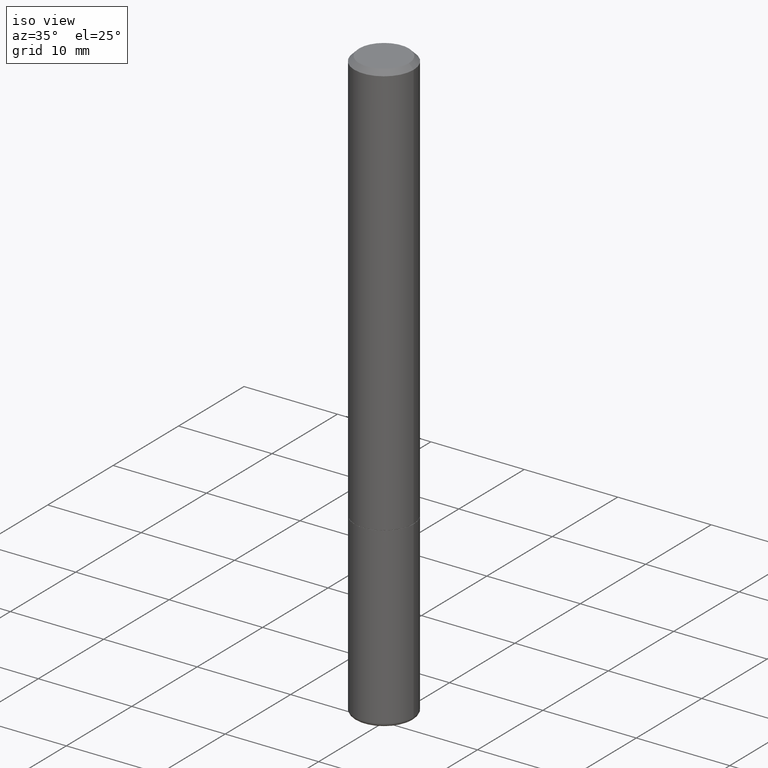
[diagram: clean part render]
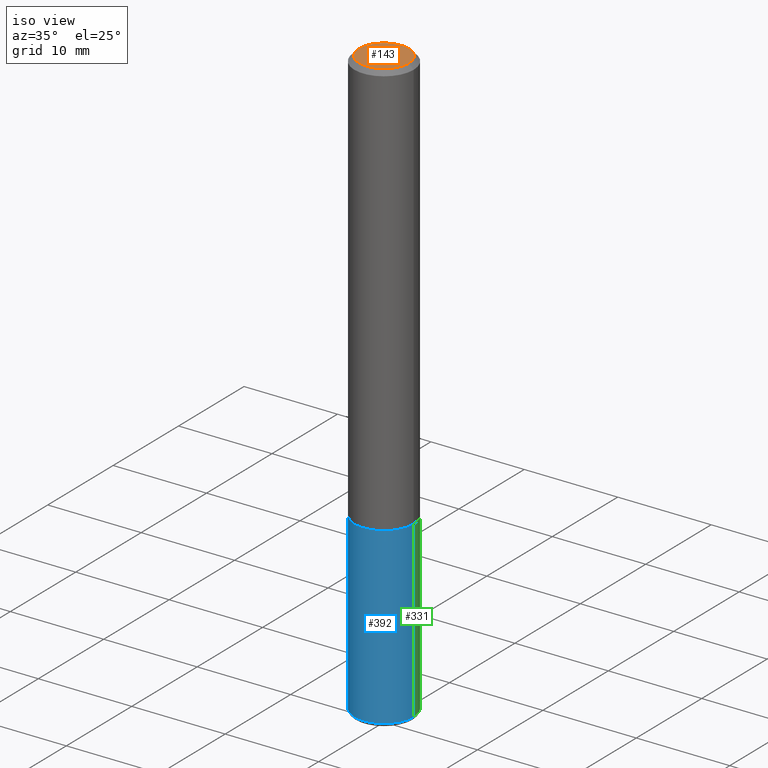
[diagram: same view with three faces highlighted in distinct colors, each labeled with its STEP entity id]
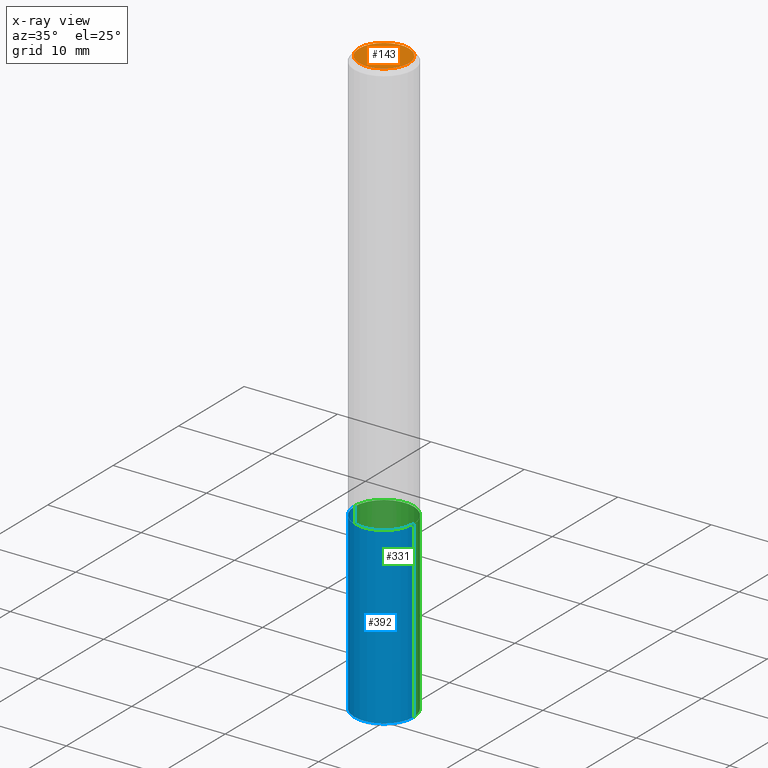
[diagram: x-ray of the same camera — body ghosted, the three highlighted faces saturated]
A machine part, iso view with three faces highlighted in distinct colors.
The next image is the same camera in x-ray (body ghosted, the three faces saturated) — at least one of them is partly hidden behind the body in this view.
Their STEP definitions:

[orange] entity #143 — the highlighted planar face has unit normal (0, -0, -1).
#5 = AXIS2_PLACEMENT_3D ( 'NONE', #10, #467, #159 ) ;
#10 = CARTESIAN_POINT ( 'NONE',  ( 7.332110811570524037E-16, 0.1049999999999992190, -3.900823592740798305E-16 ) ) ;
#17 = CARTESIAN_POINT ( 'NONE',  ( 1.148236555768741665E-45, -1.639377487418492057E-31, -4.695363739110452099E-17 ) ) ;
#30 = CARTESIAN_POINT ( 'NONE',  ( -0.1049999999999992190, 7.681258945454834611E-16, -4.695363739110977184E-17 ) ) ;
#77 = ORIENTED_EDGE ( 'NONE', *, *, #172, .T. ) ;
#83 = DIRECTION ( 'NONE',  ( -2.445468806185136597E-29, 3.491481338843145583E-15, 1.000000000000000000 ) ) ;
#143 = ADVANCED_FACE ( 'NONE', ( #199 ), #349, .F. ) ;
#159 = DIRECTION ( 'NONE',  ( -1.000000000000000000, 6.982962677686265922E-15, -4.876176775795935793E-29 ) ) ;
#172 = EDGE_CURVE ( 'NONE', #182, #414, #378, .T. ) ;
#182 = VERTEX_POINT ( 'NONE', #30 ) ;
#183 = CARTESIAN_POINT ( 'NONE',  ( 1.148236555768741665E-45, -1.639377487418492057E-31, -4.695363739110452099E-17 ) ) ;
#199 = FACE_OUTER_BOUND ( 'NONE', #334, .T. ) ;
#218 = CARTESIAN_POINT ( 'NONE',  ( 0.1049999999999992190, -8.238720831321523396E-16, -4.695363739109907908E-17 ) ) ;
#228 = DIRECTION ( 'NONE',  ( 1.000000000000000000, -6.982962677686267499E-15, 4.874400871621274649E-29 ) ) ;
#238 = DIRECTION ( 'NONE',  ( 1.000000000000000000, -6.982962677686267499E-15, 4.874400871621274649E-29 ) ) ;
#244 = ORIENTED_EDGE ( 'NONE', *, *, #482, .T. ) ;
#291 = CIRCLE ( 'NONE', #484, 0.1049999999999992190 ) ;
#334 = EDGE_LOOP ( 'NONE', ( #77, #244 ) ) ;
#349 = PLANE ( 'NONE',  #5 ) ;
#358 = DIRECTION ( 'NONE',  ( -2.445468806185136597E-29, 3.491481338843145583E-15, 1.000000000000000000 ) ) ;
#378 = CIRCLE ( 'NONE', #384, 0.1049999999999992190 ) ;
#384 = AXIS2_PLACEMENT_3D ( 'NONE', #17, #358, #238 ) ;
#414 = VERTEX_POINT ( 'NONE', #218 ) ;
#467 = DIRECTION ( 'NONE',  ( 2.438088387897960049E-29, -3.491481338843145188E-15, -1.000000000000000000 ) ) ;
#482 = EDGE_CURVE ( 'NONE', #414, #182, #291, .T. ) ;
#484 = AXIS2_PLACEMENT_3D ( 'NONE', #183, #83, #228 ) ;

[blue] entity #392 — the highlighted cylindrical surface (edge-blend (fillet) strip) has radius 3.175 mm, axis along (-0, 0, 1).
#20 = EDGE_CURVE ( 'NONE', #135, #97, #131, .T. ) ;
#35 = DIRECTION ( 'NONE',  ( -2.445468806185136597E-29, 3.491481338843145583E-15, 1.000000000000000000 ) ) ;
#37 = EDGE_CURVE ( 'NONE', #202, #97, #61, .T. ) ;
#52 = DIRECTION ( 'NONE',  ( -2.445468806185136877E-29, 3.491481338843145188E-15, 1.000000000000000000 ) ) ;
#59 = EDGE_CURVE ( 'NONE', #406, #202, #319, .T. ) ;
#61 = LINE ( 'NONE', #439, #302 ) ;
#69 = ORIENTED_EDGE ( 'NONE', *, *, #425, .F. ) ;
#76 = CYLINDRICAL_SURFACE ( 'NONE', #490, 0.1250000000000000278 ) ;
#79 = AXIS2_PLACEMENT_3D ( 'NONE', #92, #278, #166 ) ;
#80 = CARTESIAN_POINT ( 'NONE',  ( -0.1250000000000000278, 8.881784197001254296E-16, -6.148668862818634329E-30 ) ) ;
#81 = ORIENTED_EDGE ( 'NONE', *, *, #59, .T. ) ;
#87 = VECTOR ( 'NONE', #225, 39.37007874015748143 ) ;
#92 = CARTESIAN_POINT ( 'NONE',  ( 6.076991380109446545E-29, -8.676333121198880578E-15, -2.485000571154037718 ) ) ;
#97 = VERTEX_POINT ( 'NONE', #430 ) ;
#98 = DIRECTION ( 'NONE',  ( -2.445468806185136597E-29, 3.491481338843145583E-15, 1.000000000000000000 ) ) ;
#118 = AXIS2_PLACEMENT_3D ( 'NONE', #121, #98, #132 ) ;
#121 = CARTESIAN_POINT ( 'NONE',  ( 4.279570410823989044E-29, -6.110092342975505460E-15, -1.750000000000000222 ) ) ;
#131 = CIRCLE ( 'NONE', #118, 0.1250000000000000278 ) ;
#132 = DIRECTION ( 'NONE',  ( 1.000000000000000000, -6.982962677686269077E-15, 0.000000000000000000 ) ) ;
#135 = VERTEX_POINT ( 'NONE', #469 ) ;
#166 = DIRECTION ( 'NONE',  ( 1.000000000000000000, -6.982962677686269077E-15, 0.000000000000000000 ) ) ;
#202 = VERTEX_POINT ( 'NONE', #214 ) ;
#214 = CARTESIAN_POINT ( 'NONE',  ( 0.1250000000000000278, -9.549203455909665495E-15, -2.485000571154037718 ) ) ;
#225 = DIRECTION ( 'NONE',  ( -2.445468806185136877E-29, 3.491481338843145188E-15, 1.000000000000000000 ) ) ;
#251 = ORIENTED_EDGE ( 'NONE', *, *, #37, .T. ) ;
#264 = CARTESIAN_POINT ( 'NONE',  ( -0.1250000000000000278, -6.505034312387068576E-15, -2.485000571154037718 ) ) ;
#278 = DIRECTION ( 'NONE',  ( -2.445468806185136597E-29, 3.491481338843145583E-15, 1.000000000000000000 ) ) ;
#302 = VECTOR ( 'NONE', #52, 39.37007874015748143 ) ;
#319 = CIRCLE ( 'NONE', #79, 0.1250000000000000278 ) ;
#372 = EDGE_LOOP ( 'NONE', ( #69, #81, #251, #380 ) ) ;
#379 = DIRECTION ( 'NONE',  ( 1.000000000000000000, -6.982962677686267499E-15, 4.876176775795935793E-29 ) ) ;
#380 = ORIENTED_EDGE ( 'NONE', *, *, #20, .F. ) ;
#382 = FACE_OUTER_BOUND ( 'NONE', #372, .T. ) ;
#392 = ADVANCED_FACE ( 'NONE', ( #382 ), #76, .T. ) ;
#406 = VERTEX_POINT ( 'NONE', #264 ) ;
#415 = CARTESIAN_POINT ( 'NONE',  ( 0.000000000000000000, 0.000000000000000000, 0.000000000000000000 ) ) ;
#422 = LINE ( 'NONE', #80, #87 ) ;
#425 = EDGE_CURVE ( 'NONE', #406, #135, #422, .T. ) ;
#430 = CARTESIAN_POINT ( 'NONE',  ( 0.1250000000000000278, -6.982962677686288799E-15, -1.750000000000000222 ) ) ;
#439 = CARTESIAN_POINT ( 'NONE',  ( 0.1250000000000000278, -8.728703347107836346E-16, 6.095220969744921142E-30 ) ) ;
#469 = CARTESIAN_POINT ( 'NONE',  ( -0.1250000000000000278, -6.505034312387068576E-15, -1.750000000000000222 ) ) ;
#490 = AXIS2_PLACEMENT_3D ( 'NONE', #415, #35, #379 ) ;

[green] entity #331 — the highlighted cylindrical surface (edge-blend (fillet) strip) has radius 3.175 mm, axis along (-0, 0, 1).
#8 = DIRECTION ( 'NONE',  ( 1.000000000000000000, -6.982962677686269077E-15, 0.000000000000000000 ) ) ;
#34 = ORIENTED_EDGE ( 'NONE', *, *, #357, .T. ) ;
#37 = EDGE_CURVE ( 'NONE', #202, #97, #61, .T. ) ;
#52 = DIRECTION ( 'NONE',  ( -2.445468806185136877E-29, 3.491481338843145188E-15, 1.000000000000000000 ) ) ;
#56 = CIRCLE ( 'NONE', #446, 0.1250000000000000278 ) ;
#61 = LINE ( 'NONE', #439, #302 ) ;
#72 = AXIS2_PLACEMENT_3D ( 'NONE', #369, #142, #449 ) ;
#78 = EDGE_CURVE ( 'NONE', #97, #135, #56, .T. ) ;
#80 = CARTESIAN_POINT ( 'NONE',  ( -0.1250000000000000278, 8.881784197001254296E-16, -6.148668862818634329E-30 ) ) ;
#87 = VECTOR ( 'NONE', #225, 39.37007874015748143 ) ;
#97 = VERTEX_POINT ( 'NONE', #430 ) ;
#127 = EDGE_LOOP ( 'NONE', ( #34, #147, #409, #437 ) ) ;
#135 = VERTEX_POINT ( 'NONE', #469 ) ;
#142 = DIRECTION ( 'NONE',  ( -2.445468806185136597E-29, 3.491481338843145583E-15, 1.000000000000000000 ) ) ;
#147 = ORIENTED_EDGE ( 'NONE', *, *, #425, .T. ) ;
#149 = CARTESIAN_POINT ( 'NONE',  ( 6.076991380109446545E-29, -8.676333121198880578E-15, -2.485000571154037718 ) ) ;
#202 = VERTEX_POINT ( 'NONE', #214 ) ;
#206 = FACE_OUTER_BOUND ( 'NONE', #127, .T. ) ;
#210 = CYLINDRICAL_SURFACE ( 'NONE', #72, 0.1250000000000000278 ) ;
#214 = CARTESIAN_POINT ( 'NONE',  ( 0.1250000000000000278, -9.549203455909665495E-15, -2.485000571154037718 ) ) ;
#225 = DIRECTION ( 'NONE',  ( -2.445468806185136877E-29, 3.491481338843145188E-15, 1.000000000000000000 ) ) ;
#250 = CIRCLE ( 'NONE', #285, 0.1250000000000000278 ) ;
#262 = DIRECTION ( 'NONE',  ( 1.000000000000000000, -6.982962677686269077E-15, 0.000000000000000000 ) ) ;
#264 = CARTESIAN_POINT ( 'NONE',  ( -0.1250000000000000278, -6.505034312387068576E-15, -2.485000571154037718 ) ) ;
#285 = AXIS2_PLACEMENT_3D ( 'NONE', #149, #333, #262 ) ;
#302 = VECTOR ( 'NONE', #52, 39.37007874015748143 ) ;
#331 = ADVANCED_FACE ( 'NONE', ( #206 ), #210, .T. ) ;
#333 = DIRECTION ( 'NONE',  ( -2.445468806185136597E-29, 3.491481338843145583E-15, 1.000000000000000000 ) ) ;
#357 = EDGE_CURVE ( 'NONE', #202, #406, #250, .T. ) ;
#369 = CARTESIAN_POINT ( 'NONE',  ( 0.000000000000000000, 0.000000000000000000, 0.000000000000000000 ) ) ;
#388 = CARTESIAN_POINT ( 'NONE',  ( 4.279570410823989044E-29, -6.110092342975505460E-15, -1.750000000000000222 ) ) ;
#406 = VERTEX_POINT ( 'NONE', #264 ) ;
#409 = ORIENTED_EDGE ( 'NONE', *, *, #78, .F. ) ;
#422 = LINE ( 'NONE', #80, #87 ) ;
#425 = EDGE_CURVE ( 'NONE', #406, #135, #422, .T. ) ;
#430 = CARTESIAN_POINT ( 'NONE',  ( 0.1250000000000000278, -6.982962677686288799E-15, -1.750000000000000222 ) ) ;
#437 = ORIENTED_EDGE ( 'NONE', *, *, #37, .F. ) ;
#439 = CARTESIAN_POINT ( 'NONE',  ( 0.1250000000000000278, -8.728703347107836346E-16, 6.095220969744921142E-30 ) ) ;
#446 = AXIS2_PLACEMENT_3D ( 'NONE', #388, #466, #8 ) ;
#449 = DIRECTION ( 'NONE',  ( 1.000000000000000000, -6.982962677686267499E-15, 4.876176775795935793E-29 ) ) ;
#466 = DIRECTION ( 'NONE',  ( -2.445468806185136597E-29, 3.491481338843145583E-15, 1.000000000000000000 ) ) ;
#469 = CARTESIAN_POINT ( 'NONE',  ( -0.1250000000000000278, -6.505034312387068576E-15, -1.750000000000000222 ) ) ;